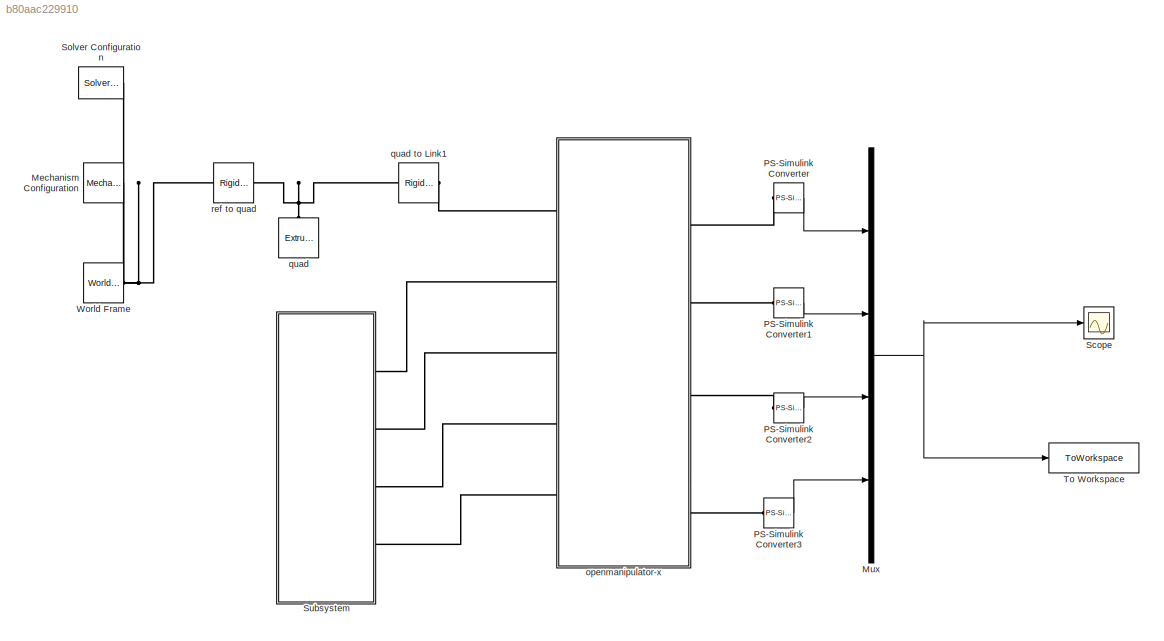
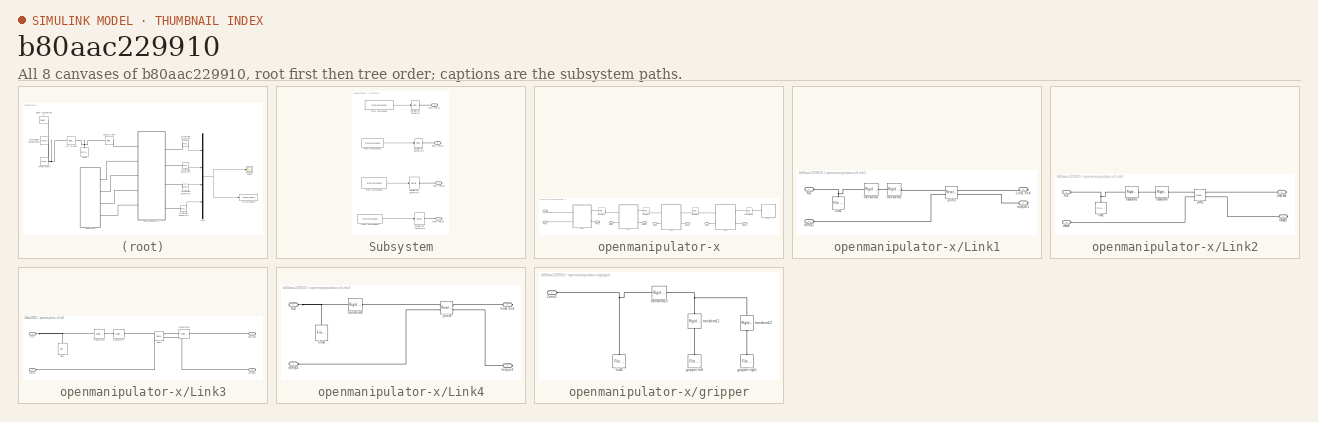
[diagram: thumbnail index - all 8 canvases of the model, root first then tree order]
MODEL slx_b80aac229910
KIND model
CONFIG AbsTol = 1e-3
CONFIG EnableMultiTasking = off
CONFIG FixedStep = Ts_M
CONFIG MaxStep = auto
CONFIG MinStep = auto
CONFIG RelTol = 1e-3
CONFIG SampleTimeConstraint = Unconstrained
CONFIG SolverName = FixedStepAuto
CONFIG StartTime = 0.0
CONFIG StopTime = tf
BLOCK [Reference] Mechanism Configuration  REF=sm_lib/Utilities/Mechanism
Configuration
  Ports = [0, 0, 0, 0, 0, 0, 1]
  SourceBlock = sm_lib/Utilities/Mechanism\nConfiguration
  SourceProductBaseCode = MS
  SourceType = Mechanism\nConfiguration
BLOCK [Mux] Mux
  DisplayOption = bar
  Ports = [4, 1]
BLOCK [Reference] PS-Simulink Converter  REF=nesl_utility/PS-Simulink
Converter
  Ports = [0, 1, 0, 0, 0, 1]
  SourceBlock = nesl_utility/PS-Simulink\nConverter
  SourceProductBaseCode = PW,SS
  SourceType = PS-Simulink\nConverter
BLOCK [Reference] PS-Simulink Converter1  REF=nesl_utility/PS-Simulink
Converter
  Ports = [0, 1, 0, 0, 0, 1]
  SourceBlock = nesl_utility/PS-Simulink\nConverter
  SourceProductBaseCode = PW,SS
  SourceType = PS-Simulink\nConverter
BLOCK [Reference] PS-Simulink Converter2  REF=nesl_utility/PS-Simulink
Converter
  Ports = [0, 1, 0, 0, 0, 1]
  SourceBlock = nesl_utility/PS-Simulink\nConverter
  SourceProductBaseCode = PW,SS
  SourceType = PS-Simulink\nConverter
BLOCK [Reference] PS-Simulink Converter3  REF=nesl_utility/PS-Simulink
Converter
  Ports = [0, 1, 0, 0, 0, 1]
  SourceBlock = nesl_utility/PS-Simulink\nConverter
  SourceProductBaseCode = PW,SS
  SourceType = PS-Simulink\nConverter
BLOCK [Scope] Scope
  Floating = off
  NumInputPorts = 1
  Ports = [1]
  ScopeSpecificationString = Simulink.scopes.TimeScopeBlockCfg('CurrentConfiguration', extmgr.ConfigurationSet(extmgr.Configuration('Core','General UI',true),extmgr.Configuration('Core','Source UI',true),extmgr.Configuration('Sources','WiredSimulink',true),extmgr.Configuration('Visuals','Time Domain',true,'SerializedDisplays',{struct('MinYLimReal','-0.05479','MaxYLimReal','0.49309','YLabelReal','','MinYLimMag','0.00000','MaxY...<+1464ch>
BLOCK [Reference] Solver Configuration  REF=nesl_utility/Solver
Configuration
  Ports = [0, 0, 0, 0, 0, 0, 1]
  SourceBlock = nesl_utility/Solver\nConfiguration
  SourceProductBaseCode = PW,SS
  SourceType = Solver\nConfiguration
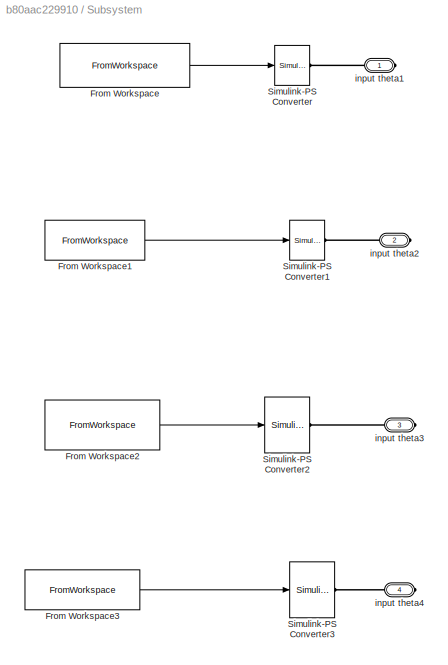
BLOCK [SubSystem] Subsystem
  Ports = [0, 0, 0, 0, 0, 0, 4]
  RequestExecContextInheritance = off
BLOCK [FromWorkspace] Subsystem/From Workspace
  SampleTime = -1
  VariableName = theta1_timeseries
BLOCK [FromWorkspace] Subsystem/From Workspace1
  SampleTime = -1
  VariableName = theta2_timeseries
BLOCK [FromWorkspace] Subsystem/From Workspace2
  SampleTime = -1
  VariableName = theta3_timeseries
BLOCK [FromWorkspace] Subsystem/From Workspace3
  SampleTime = -1
  VariableName = theta4_timeseries
BLOCK [Reference] Subsystem/Simulink-PS Converter  REF=nesl_utility/Simulink-PS
Converter
  Ports = [1, 0, 0, 0, 0, 0, 1]
  SourceBlock = nesl_utility/Simulink-PS\nConverter
  SourceProductBaseCode = PW,SS
  SourceType = Simulink-PS\nConverter
BLOCK [Reference] Subsystem/Simulink-PS Converter1  REF=nesl_utility/Simulink-PS
Converter
  Ports = [1, 0, 0, 0, 0, 0, 1]
  SourceBlock = nesl_utility/Simulink-PS\nConverter
  SourceProductBaseCode = PW,SS
  SourceType = Simulink-PS\nConverter
BLOCK [Reference] Subsystem/Simulink-PS Converter2  REF=nesl_utility/Simulink-PS
Converter
  Ports = [1, 0, 0, 0, 0, 0, 1]
  SourceBlock = nesl_utility/Simulink-PS\nConverter
  SourceProductBaseCode = PW,SS
  SourceType = Simulink-PS\nConverter
BLOCK [Reference] Subsystem/Simulink-PS Converter3  REF=nesl_utility/Simulink-PS
Converter
  Ports = [1, 0, 0, 0, 0, 0, 1]
  SourceBlock = nesl_utility/Simulink-PS\nConverter
  SourceProductBaseCode = PW,SS
  SourceType = Simulink-PS\nConverter
BLOCK [PMIOPort] Subsystem/input theta1
  Side = Right
BLOCK [PMIOPort] Subsystem/input theta2
  Port = 2
  Side = Right
BLOCK [PMIOPort] Subsystem/input theta3
  Port = 3
  Side = Right
BLOCK [PMIOPort] Subsystem/input theta4
  Port = 4
  Side = Right
BLOCK [ToWorkspace] To Workspace
  FixptAsFi = on
  MaxDataPoints = inf
  Ports = [1]
  SampleTime = -1
  SaveFormat = Timeseries
  VariableName = torque
BLOCK [Reference] World Frame  REF=sm_lib/Frames and
Transforms/World Frame
  Ports = [0, 0, 0, 0, 0, 0, 1]
  SourceBlock = sm_lib/Frames and\nTransforms/World Frame
  SourceProductBaseCode = MS
  SourceType = World Frame
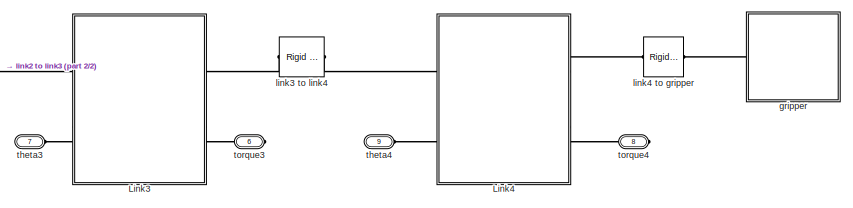
[diagram: openmanipulator-x - part 1/2, right side, full height]
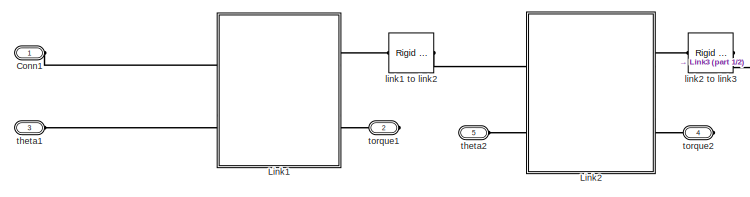
[diagram: openmanipulator-x - part 2/2, left side, full height]
BLOCK [SubSystem] openmanipulator-x
  Ports = [0, 0, 0, 0, 0, 5, 4]
  RequestExecContextInheritance = off
BLOCK [PMIOPort] openmanipulator-x/Conn1
  Side = Left
BLOCK [SubSystem] openmanipulator-x/Link1
  Ports = [0, 0, 0, 0, 0, 2, 2]
  RequestExecContextInheritance = off
BLOCK [PMIOPort] openmanipulator-x/Link1/Link1 end
  Port = 3
  Side = Right
BLOCK [PMIOPort] openmanipulator-x/Link1/RJ1 
  Side = Left
BLOCK [Reference] openmanipulator-x/Link1/joint1  REF=sm_lib/Joints/Revolute Joint
  Ports = [0, 0, 0, 0, 0, 2, 2]
  SourceBlock = sm_lib/Joints/Revolute Joint
  SourceProductBaseCode = MS
  SourceType = Revolute Joint
BLOCK [Reference] openmanipulator-x/Link1/link1  REF=sm_lib/Body Elements/File Solid
  NameLocation = right
  Ports = [0, 0, 0, 0, 0, 0, 1]
  SourceBlock = sm_lib/Body Elements/File Solid
  SourceProductBaseCode = MS
  SourceType = File Solid
BLOCK [PMIOPort] openmanipulator-x/Link1/theta1 
  Port = 2
  Side = Left
BLOCK [PMIOPort] openmanipulator-x/Link1/torque1
  Port = 4
  Side = Right
BLOCK [Reference] openmanipulator-x/Link1/transform1  REF=sm_lib/Frames and
Transforms/Rigid
Transform
  Ports = [0, 0, 0, 0, 0, 1, 1]
  SourceBlock = sm_lib/Frames and\nTransforms/Rigid\nTransform
  SourceProductBaseCode = MS
  SourceType = Rigid\nTransform
BLOCK [Reference] openmanipulator-x/Link1/transform2  REF=sm_lib/Frames and
Transforms/Rigid
Transform
  Ports = [0, 0, 0, 0, 0, 1, 1]
  SourceBlock = sm_lib/Frames and\nTransforms/Rigid\nTransform
  SourceProductBaseCode = MS
  SourceType = Rigid\nTransform
BLOCK [SubSystem] openmanipulator-x/Link2
  Ports = [0, 0, 0, 0, 0, 2, 2]
  RequestExecContextInheritance = off
BLOCK [PMIOPort] openmanipulator-x/Link2/Link2 end 
  Port = 3
  Side = Right
BLOCK [PMIOPort] openmanipulator-x/Link2/RJ2
  Side = Left
BLOCK [Reference] openmanipulator-x/Link2/joint2  REF=sm_lib/Joints/Revolute Joint
  Ports = [0, 0, 0, 0, 0, 2, 2]
  SourceBlock = sm_lib/Joints/Revolute Joint
  SourceProductBaseCode = MS
  SourceType = Revolute Joint
BLOCK [Reference] openmanipulator-x/Link2/link2  REF=sm_lib/Body Elements/File Solid
  NameLocation = right
  Ports = [0, 0, 0, 0, 0, 0, 1]
  SourceBlock = sm_lib/Body Elements/File Solid
  SourceProductBaseCode = MS
  SourceType = File Solid
BLOCK [PMIOPort] openmanipulator-x/Link2/theta2
  Port = 2
  Side = Left
BLOCK [PMIOPort] openmanipulator-x/Link2/torque2
  Port = 4
  Side = Right
BLOCK [Reference] openmanipulator-x/Link2/transform3  REF=sm_lib/Frames and
Transforms/Rigid
Transform
  Ports = [0, 0, 0, 0, 0, 1, 1]
  SourceBlock = sm_lib/Frames and\nTransforms/Rigid\nTransform
  SourceProductBaseCode = MS
  SourceType = Rigid\nTransform
BLOCK [Reference] openmanipulator-x/Link2/transform4  REF=sm_lib/Frames and
Transforms/Rigid
Transform
  Ports = [0, 0, 0, 0, 0, 1, 1]
  SourceBlock = sm_lib/Frames and\nTransforms/Rigid\nTransform
  SourceProductBaseCode = MS
  SourceType = Rigid\nTransform
BLOCK [SubSystem] openmanipulator-x/Link3
  Ports = [0, 0, 0, 0, 0, 2, 2]
  RequestExecContextInheritance = off
BLOCK [PMIOPort] openmanipulator-x/Link3/Link3 end 
  Port = 3
  Side = Right
BLOCK [PMIOPort] openmanipulator-x/Link3/RJ3
  Side = Left
BLOCK [Reference] openmanipulator-x/Link3/joint3  REF=sm_lib/Joints/Revolute Joint
  Ports = [0, 0, 0, 0, 0, 2, 2]
  SourceBlock = sm_lib/Joints/Revolute Joint
  SourceProductBaseCode = MS
  SourceType = Revolute Joint
BLOCK [Reference] openmanipulator-x/Link3/link3  REF=sm_lib/Body Elements/File Solid
  NameLocation = right
  Ports = [0, 0, 0, 0, 0, 0, 1]
  SourceBlock = sm_lib/Body Elements/File Solid
  SourceProductBaseCode = MS
  SourceType = File Solid
BLOCK [PMIOPort] openmanipulator-x/Link3/theta3
  Port = 2
  Side = Left
BLOCK [PMIOPort] openmanipulator-x/Link3/torque3
  Port = 4
  Side = Right
BLOCK [Reference] openmanipulator-x/Link3/transform6   REF=sm_lib/Frames and
Transforms/Rigid
Transform
  Ports = [0, 0, 0, 0, 0, 1, 1]
  SourceBlock = sm_lib/Frames and\nTransforms/Rigid\nTransform
  SourceProductBaseCode = MS
  SourceType = Rigid\nTransform
BLOCK [Reference] openmanipulator-x/Link3/transform7  REF=sm_lib/Frames and
Transforms/Rigid
Transform
  Ports = [0, 0, 0, 0, 0, 1, 1]
  SourceBlock = sm_lib/Frames and\nTransforms/Rigid\nTransform
  SourceProductBaseCode = MS
  SourceType = Rigid\nTransform
BLOCK [Reference] openmanipulator-x/Link3/transform8  REF=sm_lib/Frames and
Transforms/Rigid
Transform
  Ports = [0, 0, 0, 0, 0, 1, 1]
  SourceBlock = sm_lib/Frames and\nTransforms/Rigid\nTransform
  SourceProductBaseCode = MS
  SourceType = Rigid\nTransform
BLOCK [SubSystem] openmanipulator-x/Link4
  Ports = [0, 0, 0, 0, 0, 2, 2]
  RequestExecContextInheritance = off
BLOCK [PMIOPort] openmanipulator-x/Link4/RJ3
  Side = Left
BLOCK [Reference] openmanipulator-x/Link4/joint4  REF=sm_lib/Joints/Revolute Joint
  Ports = [0, 0, 0, 0, 0, 2, 2]
  SourceBlock = sm_lib/Joints/Revolute Joint
  SourceProductBaseCode = MS
  SourceType = Revolute Joint
BLOCK [Reference] openmanipulator-x/Link4/link4  REF=sm_lib/Body Elements/File Solid
  NameLocation = right
  Ports = [0, 0, 0, 0, 0, 0, 1]
  SourceBlock = sm_lib/Body Elements/File Solid
  SourceProductBaseCode = MS
  SourceType = File Solid
BLOCK [PMIOPort] openmanipulator-x/Link4/link4 end
  Port = 3
  Side = Right
BLOCK [PMIOPort] openmanipulator-x/Link4/theta4
  Port = 2
  Side = Left
BLOCK [PMIOPort] openmanipulator-x/Link4/torque4
  Port = 4
  Side = Right
BLOCK [Reference] openmanipulator-x/Link4/transform9  REF=sm_lib/Frames and
Transforms/Rigid
Transform
  Ports = [0, 0, 0, 0, 0, 1, 1]
  SourceBlock = sm_lib/Frames and\nTransforms/Rigid\nTransform
  SourceProductBaseCode = MS
  SourceType = Rigid\nTransform
BLOCK [SubSystem] openmanipulator-x/gripper
  Ports = [0, 0, 0, 0, 0, 1]
  RequestExecContextInheritance = off
BLOCK [PMIOPort] openmanipulator-x/gripper/Conn1
  Side = Left
BLOCK [Reference] openmanipulator-x/gripper/gripper left  REF=sm_lib/Body Elements/File Solid
  NameLocation = right
  Ports = [0, 0, 0, 0, 0, 0, 1]
  SourceBlock = sm_lib/Body Elements/File Solid
  SourceProductBaseCode = MS
  SourceType = File Solid
BLOCK [Reference] openmanipulator-x/gripper/gripper right  REF=sm_lib/Body Elements/File Solid
  NameLocation = right
  Ports = [0, 0, 0, 0, 0, 0, 1]
  SourceBlock = sm_lib/Body Elements/File Solid
  SourceProductBaseCode = MS
  SourceType = File Solid
BLOCK [Reference] openmanipulator-x/gripper/link5  REF=sm_lib/Body Elements/File Solid
  NameLocation = right
  Ports = [0, 0, 0, 0, 0, 0, 1]
  SourceBlock = sm_lib/Body Elements/File Solid
  SourceProductBaseCode = MS
  SourceType = File Solid
BLOCK [Reference] openmanipulator-x/gripper/transform10  REF=sm_lib/Frames and
Transforms/Rigid
Transform
  Ports = [0, 0, 0, 0, 0, 1, 1]
  SourceBlock = sm_lib/Frames and\nTransforms/Rigid\nTransform
  SourceProductBaseCode = MS
  SourceType = Rigid\nTransform
BLOCK [Reference] openmanipulator-x/gripper/transform11  REF=sm_lib/Frames and
Transforms/Rigid
Transform
  NameLocation = left
  Ports = [0, 0, 0, 0, 0, 1, 1]
  SourceBlock = sm_lib/Frames and\nTransforms/Rigid\nTransform
  SourceProductBaseCode = MS
  SourceType = Rigid\nTransform
BLOCK [Reference] openmanipulator-x/gripper/transform12  REF=sm_lib/Frames and
Transforms/Rigid
Transform
  NameLocation = left
  Ports = [0, 0, 0, 0, 0, 1, 1]
  SourceBlock = sm_lib/Frames and\nTransforms/Rigid\nTransform
  SourceProductBaseCode = MS
  SourceType = Rigid\nTransform
BLOCK [Reference] openmanipulator-x/link1 to link2  REF=sm_lib/Frames and
Transforms/Rigid
Transform
  Ports = [0, 0, 0, 0, 0, 1, 1]
  SourceBlock = sm_lib/Frames and\nTransforms/Rigid\nTransform
  SourceProductBaseCode = MS
  SourceType = Rigid\nTransform
BLOCK [Reference] openmanipulator-x/link2 to link3  REF=sm_lib/Frames and
Transforms/Rigid
Transform
  Ports = [0, 0, 0, 0, 0, 1, 1]
  SourceBlock = sm_lib/Frames and\nTransforms/Rigid\nTransform
  SourceProductBaseCode = MS
  SourceType = Rigid\nTransform
BLOCK [Reference] openmanipulator-x/link3 to link4  REF=sm_lib/Frames and
Transforms/Rigid
Transform
  Ports = [0, 0, 0, 0, 0, 1, 1]
  SourceBlock = sm_lib/Frames and\nTransforms/Rigid\nTransform
  SourceProductBaseCode = MS
  SourceType = Rigid\nTransform
BLOCK [Reference] openmanipulator-x/link4 to gripper  REF=sm_lib/Frames and
Transforms/Rigid
Transform
  Ports = [0, 0, 0, 0, 0, 1, 1]
  SourceBlock = sm_lib/Frames and\nTransforms/Rigid\nTransform
  SourceProductBaseCode = MS
  SourceType = Rigid\nTransform
BLOCK [PMIOPort] openmanipulator-x/theta1
  Port = 3
  Side = Left
BLOCK [PMIOPort] openmanipulator-x/theta2
  Port = 5
  Side = Left
BLOCK [PMIOPort] openmanipulator-x/theta3
  Port = 7
  Side = Left
BLOCK [PMIOPort] openmanipulator-x/theta4
  Port = 9
  Side = Left
BLOCK [PMIOPort] openmanipulator-x/torque1
  Port = 2
  Side = Right
BLOCK [PMIOPort] openmanipulator-x/torque2
  Port = 4
  Side = Right
BLOCK [PMIOPort] openmanipulator-x/torque3
  Port = 6
  Side = Right
BLOCK [PMIOPort] openmanipulator-x/torque4
  Port = 8
  Side = Right
BLOCK [Reference] quad  REF=sm_lib/Body Elements/Extruded Solid
  NameLocation = right
  Ports = [0, 0, 0, 0, 0, 0, 1]
  SourceBlock = sm_lib/Body Elements/Extruded Solid
  SourceProductBaseCode = MS
  SourceType = Extruded Solid
BLOCK [Reference] quad to Link1  REF=sm_lib/Frames and
Transforms/Rigid
Transform
  Ports = [0, 0, 0, 0, 0, 1, 1]
  SourceBlock = sm_lib/Frames and\nTransforms/Rigid\nTransform
  SourceProductBaseCode = MS
  SourceType = Rigid\nTransform
BLOCK [Reference] ref to quad   REF=sm_lib/Frames and
Transforms/Rigid
Transform
  Ports = [0, 0, 0, 0, 0, 1, 1]
  SourceBlock = sm_lib/Frames and\nTransforms/Rigid\nTransform
  SourceProductBaseCode = MS
  SourceType = Rigid\nTransform
NET Mux:1 -> Scope:1, To Workspace:1
LINE PS-Simulink Converter1:1 -> Mux:2
LINE PS-Simulink Converter2:1 -> Mux:3
LINE PS-Simulink Converter3:1 -> Mux:4
LINE PS-Simulink Converter:1 -> Mux:1
LINE Subsystem/From Workspace1:1 -> Subsystem/Simulink-PS Converter1:1
LINE Subsystem/From Workspace2:1 -> Subsystem/Simulink-PS Converter2:1
LINE Subsystem/From Workspace3:1 -> Subsystem/Simulink-PS Converter3:1
LINE Subsystem/From Workspace:1 -> Subsystem/Simulink-PS Converter:1
PNET net1: Mechanism Configuration:RConn1 -- Solver Configuration:RConn1 -- World Frame:RConn1 -- ref to quad :LConn1
PLINE PS-Simulink Converter1:LConn1 -- openmanipulator-x:RConn2
PLINE PS-Simulink Converter2:LConn1 -- openmanipulator-x:RConn3
PLINE PS-Simulink Converter3:LConn1 -- openmanipulator-x:RConn4
PLINE PS-Simulink Converter:LConn1 -- openmanipulator-x:RConn1
PLINE Subsystem/Simulink-PS Converter1:RConn1 -- Subsystem/input theta2:RConn1
PLINE Subsystem/Simulink-PS Converter2:RConn1 -- Subsystem/input theta3:RConn1
PLINE Subsystem/Simulink-PS Converter3:RConn1 -- Subsystem/input theta4:RConn1
PLINE Subsystem/Simulink-PS Converter:RConn1 -- Subsystem/input theta1:RConn1
PLINE Subsystem:RConn1 -- openmanipulator-x:LConn2
PLINE Subsystem:RConn2 -- openmanipulator-x:LConn3
PLINE Subsystem:RConn3 -- openmanipulator-x:LConn4
PLINE Subsystem:RConn4 -- openmanipulator-x:LConn5
PLINE openmanipulator-x/Conn1:RConn1 -- openmanipulator-x/Link1:LConn1
PLINE openmanipulator-x/Link1/Link1 end:RConn1 -- openmanipulator-x/Link1/joint1:RConn1
PNET net2: openmanipulator-x/Link1/RJ1 :RConn1 -- openmanipulator-x/Link1/link1:RConn1 -- openmanipulator-x/Link1/transform1:LConn1
PLINE openmanipulator-x/Link1/joint1:LConn1 -- openmanipulator-x/Link1/transform2:RConn1
PLINE openmanipulator-x/Link1/joint1:LConn2 -- openmanipulator-x/Link1/theta1 :RConn1
PLINE openmanipulator-x/Link1/joint1:RConn2 -- openmanipulator-x/Link1/torque1:RConn1
PLINE openmanipulator-x/Link1/transform1:RConn1 -- openmanipulator-x/Link1/transform2:LConn1
PLINE openmanipulator-x/Link1:LConn2 -- openmanipulator-x/theta1:RConn1
PLINE openmanipulator-x/Link1:RConn1 -- openmanipulator-x/link1 to link2:LConn1
PLINE openmanipulator-x/Link1:RConn2 -- openmanipulator-x/torque1:RConn1
PLINE openmanipulator-x/Link2/Link2 end :RConn1 -- openmanipulator-x/Link2/joint2:RConn1
PNET net3: openmanipulator-x/Link2/RJ2:RConn1 -- openmanipulator-x/Link2/link2:RConn1 -- openmanipulator-x/Link2/transform3:LConn1
PLINE openmanipulator-x/Link2/joint2:LConn1 -- openmanipulator-x/Link2/transform4:RConn1
PLINE openmanipulator-x/Link2/joint2:LConn2 -- openmanipulator-x/Link2/theta2:RConn1
PLINE openmanipulator-x/Link2/joint2:RConn2 -- openmanipulator-x/Link2/torque2:RConn1
PLINE openmanipulator-x/Link2/transform3:RConn1 -- openmanipulator-x/Link2/transform4:LConn1
PLINE openmanipulator-x/Link2:LConn1 -- openmanipulator-x/link1 to link2:RConn1
PLINE openmanipulator-x/Link2:LConn2 -- openmanipulator-x/theta2:RConn1
PLINE openmanipulator-x/Link2:RConn1 -- openmanipulator-x/link2 to link3:LConn1
PLINE openmanipulator-x/Link2:RConn2 -- openmanipulator-x/torque2:RConn1
PLINE openmanipulator-x/Link3/Link3 end :RConn1 -- openmanipulator-x/Link3/transform8:RConn1
PNET net4: openmanipulator-x/Link3/RJ3:RConn1 -- openmanipulator-x/Link3/link3:RConn1 -- openmanipulator-x/Link3/transform6 :LConn1
PLINE openmanipulator-x/Link3/joint3:LConn1 -- openmanipulator-x/Link3/transform7:RConn1
PLINE openmanipulator-x/Link3/joint3:LConn2 -- openmanipulator-x/Link3/theta3:RConn1
PLINE openmanipulator-x/Link3/joint3:RConn1 -- openmanipulator-x/Link3/transform8:LConn1
PLINE openmanipulator-x/Link3/joint3:RConn2 -- openmanipulator-x/Link3/torque3:RConn1
PLINE openmanipulator-x/Link3/transform6 :RConn1 -- openmanipulator-x/Link3/transform7:LConn1
PLINE openmanipulator-x/Link3:LConn1 -- openmanipulator-x/link2 to link3:RConn1
PLINE openmanipulator-x/Link3:LConn2 -- openmanipulator-x/theta3:RConn1
PLINE openmanipulator-x/Link3:RConn1 -- openmanipulator-x/link3 to link4:LConn1
PLINE openmanipulator-x/Link3:RConn2 -- openmanipulator-x/torque3:RConn1
PNET net5: openmanipulator-x/Link4/RJ3:RConn1 -- openmanipulator-x/Link4/link4:RConn1 -- openmanipulator-x/Link4/transform9:LConn1
PLINE openmanipulator-x/Link4/joint4:LConn1 -- openmanipulator-x/Link4/transform9:RConn1
PLINE openmanipulator-x/Link4/joint4:LConn2 -- openmanipulator-x/Link4/theta4:RConn1
PLINE openmanipulator-x/Link4/joint4:RConn1 -- openmanipulator-x/Link4/link4 end:RConn1
PLINE openmanipulator-x/Link4/joint4:RConn2 -- openmanipulator-x/Link4/torque4:RConn1
PLINE openmanipulator-x/Link4:LConn1 -- openmanipulator-x/link3 to link4:RConn1
PLINE openmanipulator-x/Link4:LConn2 -- openmanipulator-x/theta4:RConn1
PLINE openmanipulator-x/Link4:RConn1 -- openmanipulator-x/link4 to gripper:RConn1
PLINE openmanipulator-x/Link4:RConn2 -- openmanipulator-x/torque4:RConn1
PNET net6: openmanipulator-x/gripper/Conn1:RConn1 -- openmanipulator-x/gripper/link5:RConn1 -- openmanipulator-x/gripper/transform10:LConn1
PLINE openmanipulator-x/gripper/gripper left:RConn1 -- openmanipulator-x/gripper/transform11:RConn1
PLINE openmanipulator-x/gripper/gripper right:RConn1 -- openmanipulator-x/gripper/transform12:RConn1
PNET net7: openmanipulator-x/gripper/transform10:RConn1 -- openmanipulator-x/gripper/transform11:LConn1 -- openmanipulator-x/gripper/transform12:LConn1
PLINE openmanipulator-x/gripper:LConn1 -- openmanipulator-x/link4 to gripper:LConn1
PLINE openmanipulator-x:LConn1 -- quad to Link1:RConn1
PNET net8: quad to Link1:LConn1 -- quad:RConn1 -- ref to quad :RConn1
note: NET lines group one-source signal fan-out (src -> all destinations, sorted); 1:1 wires keep LINE; PNET lines group multi-terminal physical nets as a canonical sorted terminal list (undirected conserving connections); 2-terminal nets keep the pairwise PLINE form
